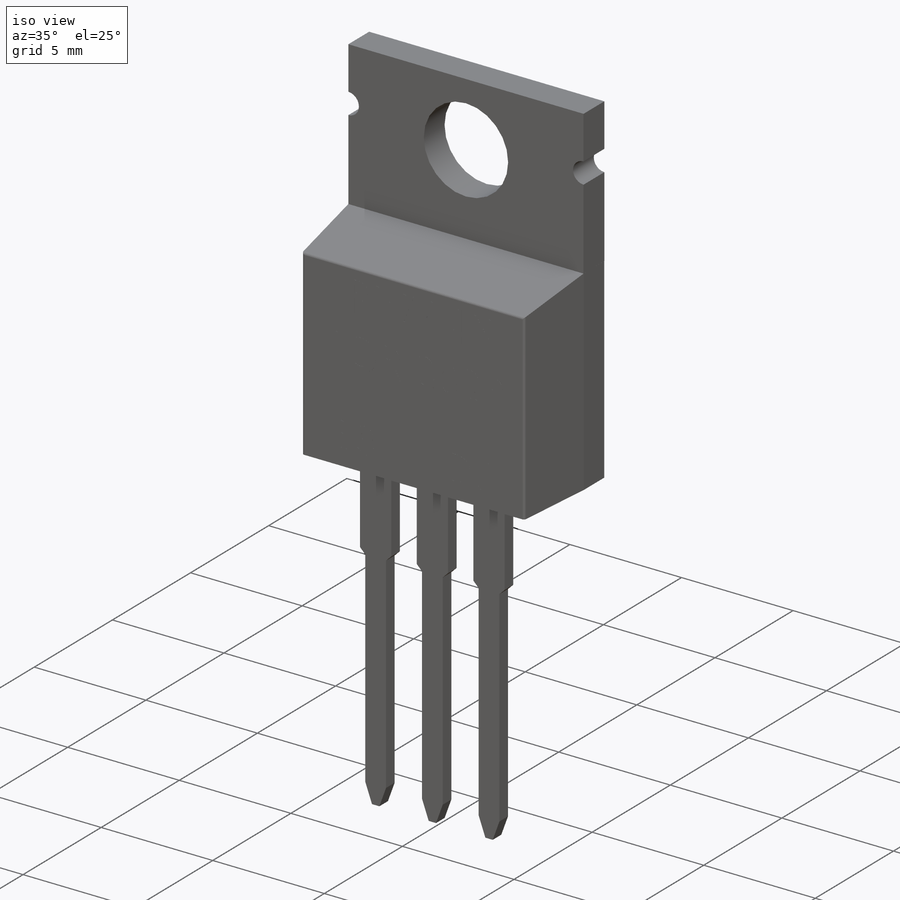
[diagram: iso view]
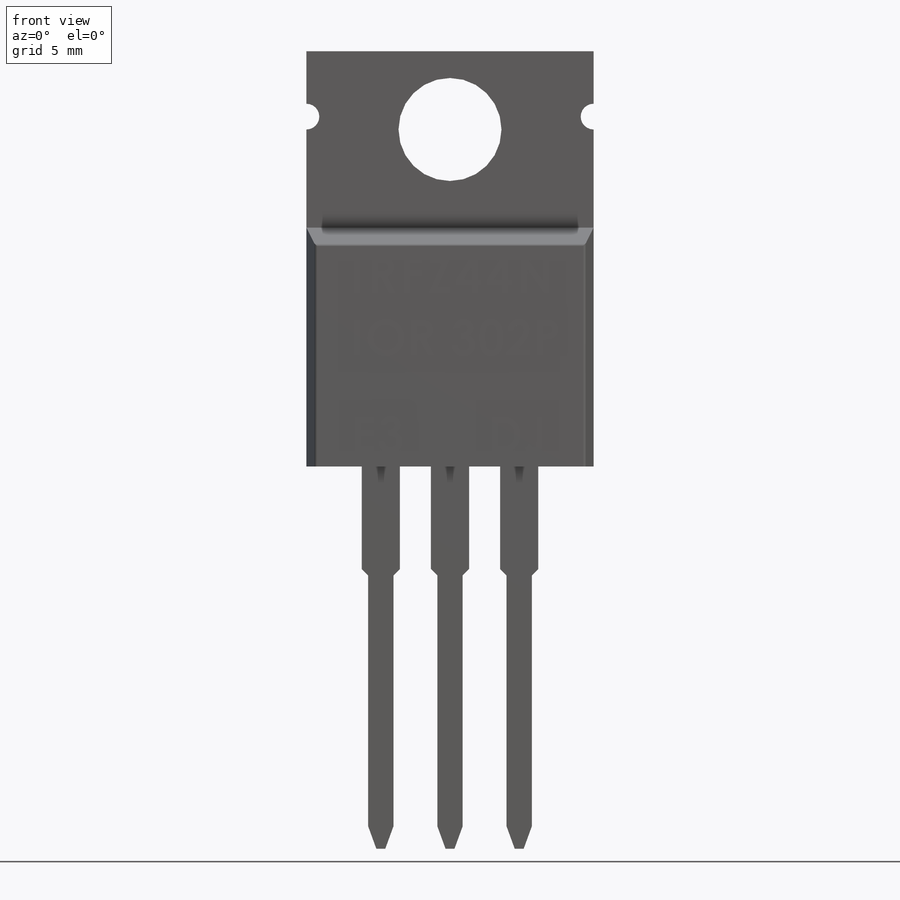
[diagram: front view]
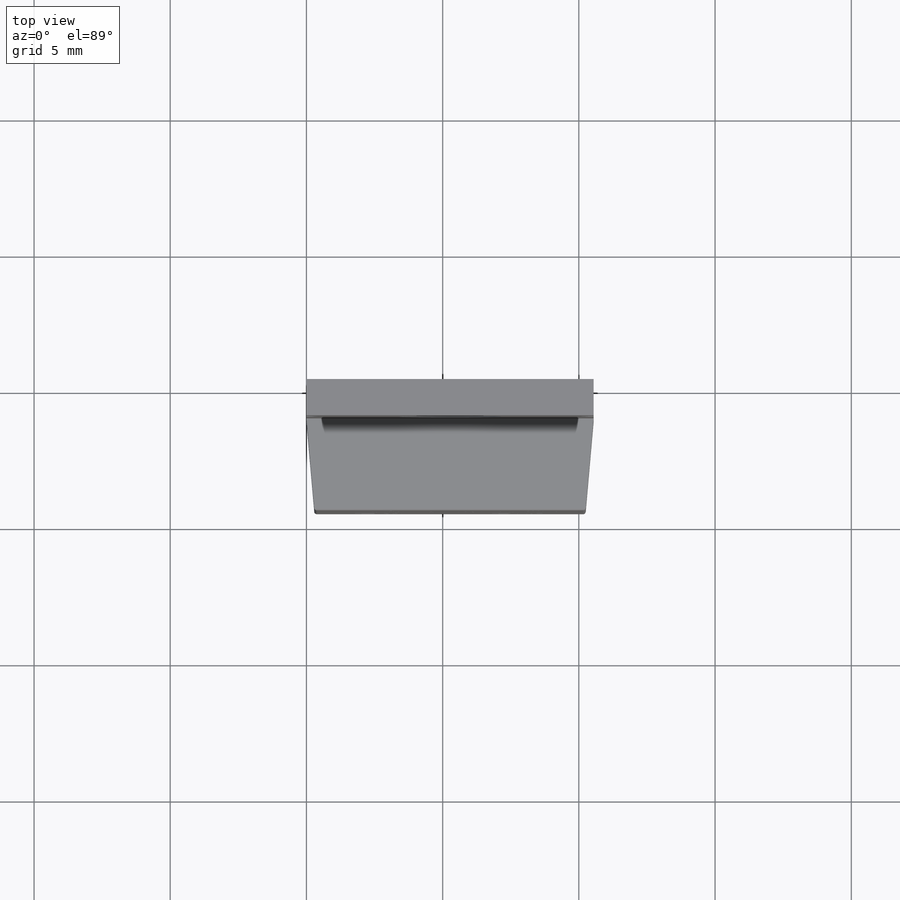
[diagram: top view]
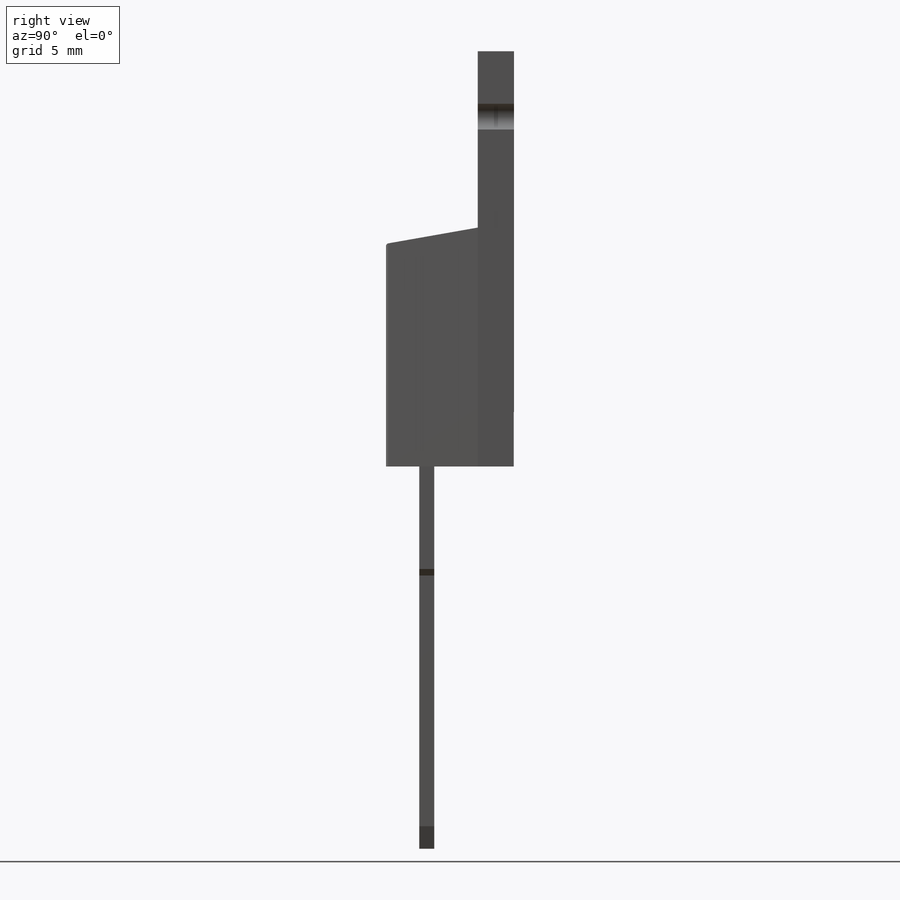
[diagram: right view]
SOLIDWORKS PART (.sldprt)
format: sldprt  version: not decoded by parser v0  size: 645,632 bytes
history: native  units: mm
features: sketch x9, extrude x8, chamfer x4, material x1, fillet x1, cut_extrude x1 (+13 scaffold rows collapsed)
feature tree (37):
  scaffold x13  (default folders/planes/origin — collapsed)
  material  "Material <not specified>"
  sketch  "Sketch1"  dims[D1=10.54mm D2=15.24mm]
  extrude  "Boss-Extrude1"  Depth=1.32mm
  sketch  "Sketch3"  dims[D1=6.47mm]
  extrude  "Boss-Extrude2"  Depth=3.37mm
  chamfer  "Chamfer1"  Distance=3.37mm Angle=10deg
  chamfer  "Chamfer2"  Distance=3.37mm Angle=5deg
  fillet  "Fillet1"  Radius=0.1mm
  sketch  "Sketch5"  dims[D1=1.4mm D2=0.55mm D3=0.7mm D4=2.92mm D5=2.0 D6=2.0]
  extrude  "Boss-Extrude3"  Depth=4mm
  chamfer  "Chamfer3"  Distance=0.235mm Angle=45deg
  sketch  "Sketch6"
  extrude  "Boss-Extrude4"  Depth=10.03mm
  chamfer  "Chamfer4"  Distance=0.3mm Angle=70deg
  sketch  "Sketch7"  dims[D2=1.5mm D3=1.5mm D4=2.0mm D1=0.0mm]
  extrude  "Boss-Extrude5"  Depth=0.01mm
  sketch  "Sketch4"  dims[c1.D1=~2.395023mm c1.D2=3.78mm c1.D3=0.945mm c2.D1=2.87mm]
  cut_extrude  "Cut-Extrude1"  [1 undecoded]
  sketch  "Sketch8"  dims[D1=0.0mm]
  extrude  "Boss-Extrude6"  Depth=0.001mm
  sketch  "Sketch9"
  extrude  "Boss-Extrude7"  Depth=0.001mm
  sketch  "Sketch10"
  extrude  "Boss-Extrude8"  Depth=0.001mm
decode coverage: 19 of 23 modeling features carry decoded parameters
note: ~ marks probable driven/reference dimensions
note: 1 parameter value undecoded
note: suppression state not decoded; provenance and decode notes live in map.json
